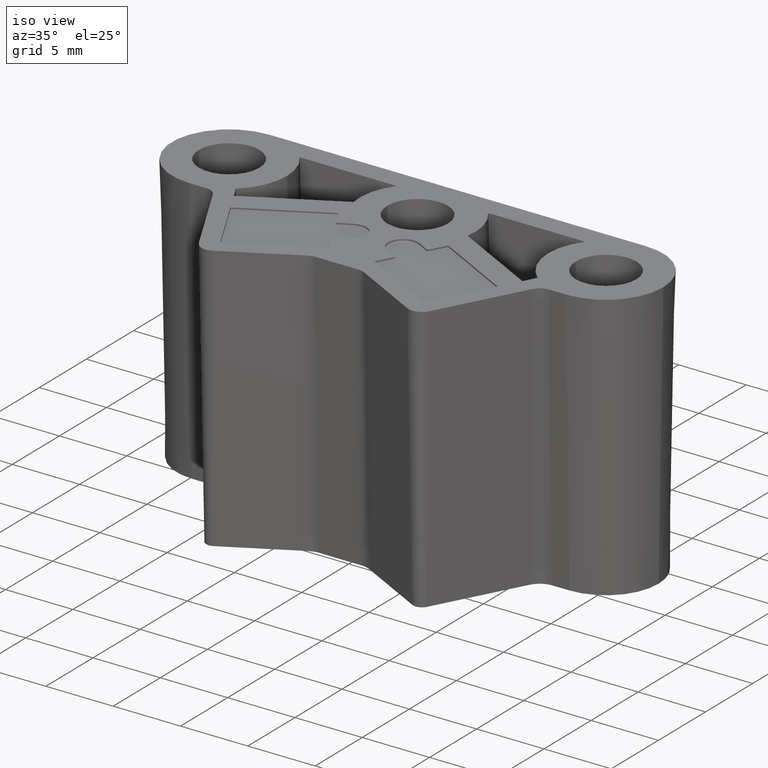
[diagram: clean part render]
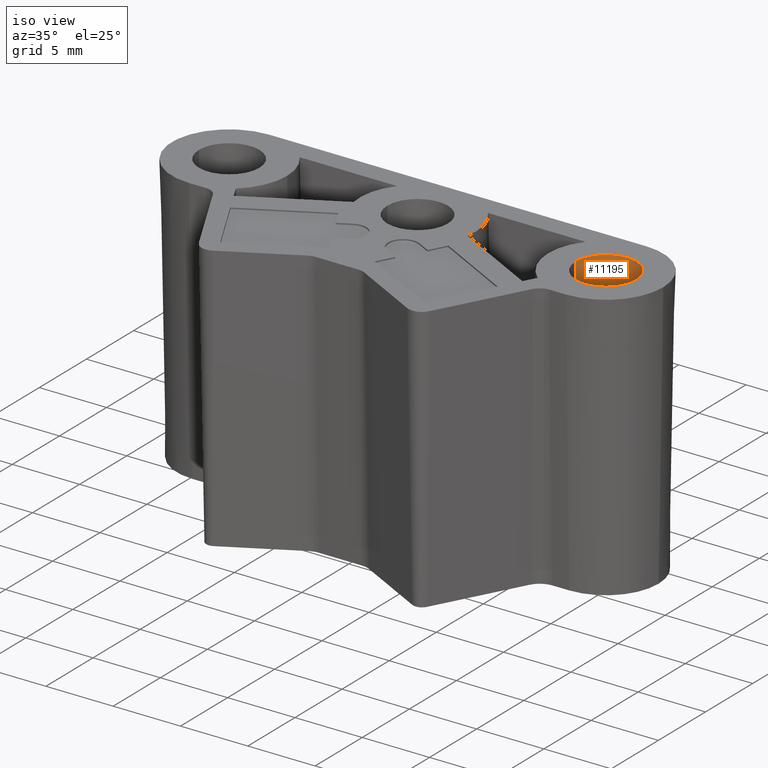
[diagram: same view with one face highlighted and labeled with its STEP entity id]
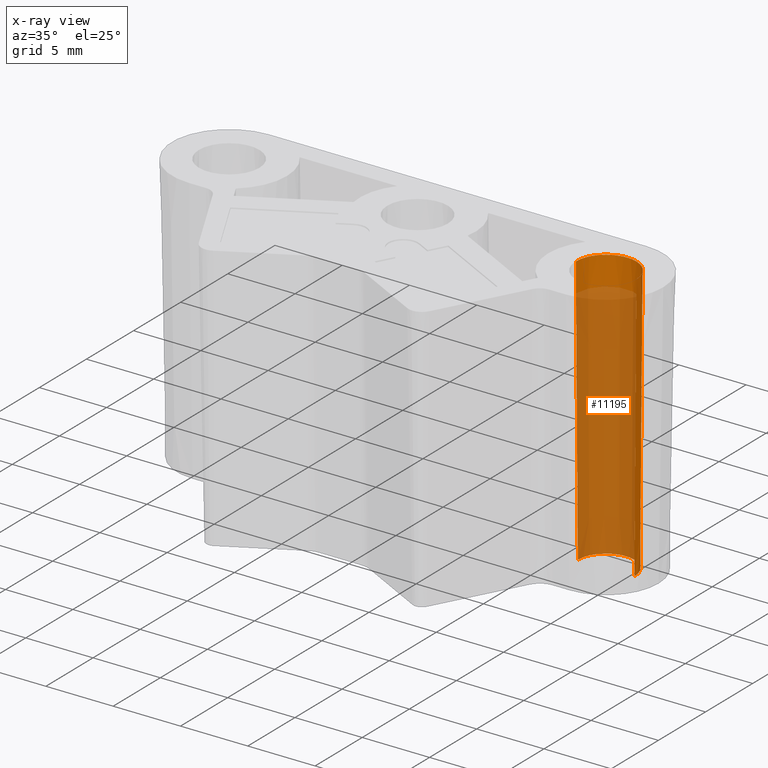
[diagram: x-ray of the same camera — body ghosted, the highlighted face saturated]
A machine part, iso view. The second image highlights one B-rep face of the part: STEP entity #11195.
The next image is the same camera in x-ray: the body ghosted, the highlighted face saturated — about 80% of this face is hidden behind the body in this view.
In plain terms, the highlighted conical surface has half-angle 0.43 deg.
Its self-contained STEP definition (entity closure, byte-faithful):
#1626 = DIRECTION ( 'NONE',  ( 1.000000000000000000, 0.0000000000000000000, 5.916456789157585900E-031 ) ) ;
#1627 = DIRECTION ( 'NONE',  ( 5.916456789157588500E-031, 5.146084811402694200E-031, 1.000000000000000000 ) ) ;
#1628 = CARTESIAN_POINT ( 'NONE',  ( 13.99999999999999800, 32.29999999999999700, 0.0000000000000000000 ) ) ;
#1629 = AXIS2_PLACEMENT_3D ( 'NONE', #1628, #1627, #1626 ) ;
#1630 = CIRCLE ( 'NONE', #1629, 2.100000000000001000 ) ;
#2148 = CIRCLE ( 'NONE', #2211, 2.249996408119448800 ) ;
#2208 = DIRECTION ( 'NONE',  ( 1.000000000000000000, 0.0000000000000000000, 0.0000000000000000000 ) ) ;
#2209 = DIRECTION ( 'NONE',  ( 5.916456789157588500E-031, 5.146084811402694200E-031, 1.000000000000000000 ) ) ;
#2210 = CARTESIAN_POINT ( 'NONE',  ( 13.99999999999999800, 32.29999999999999700, 20.00000000000001800 ) ) ;
#2211 = AXIS2_PLACEMENT_3D ( 'NONE', #2210, #2209, #2208 ) ;
#4363 = DIRECTION ( 'NONE',  ( -0.007499609492522719600, 9.184069435735085200E-019, 0.9999718775332932000 ) ) ;
#4364 = VECTOR ( 'NONE', #4363, 1000.000000000000100 ) ;
#4365 = CARTESIAN_POINT ( 'NONE',  ( 11.89999999999999900, 32.29999999999999700, -1.242455925723093700E-030 ) ) ;
#4366 = LINE ( 'NONE', #4365, #4364 ) ;
#4369 = CARTESIAN_POINT ( 'NONE',  ( 16.24999640811944700, 32.29999999999999700, 20.00000000000001800 ) ) ;
#4370 = CARTESIAN_POINT ( 'NONE',  ( 11.89999999999999900, 32.29999999999999700, 1.242455925723093600E-030 ) ) ;
#4371 = CARTESIAN_POINT ( 'NONE',  ( 16.10000000000000100, 32.29999999999999700, 1.242455925723093600E-030 ) ) ;
#4397 = DIRECTION ( 'NONE',  ( 0.007499609492522719600, 5.144498011504655900E-031, 0.9999718775332932000 ) ) ;
#4398 = VECTOR ( 'NONE', #4397, 1000.000000000000100 ) ;
#4399 = CARTESIAN_POINT ( 'NONE',  ( 16.10000000000000100, 32.29999999999999700, 1.242455925723093600E-030 ) ) ;
#4400 = LINE ( 'NONE', #4399, #4398 ) ;
#4407 = CARTESIAN_POINT ( 'NONE',  ( 11.75000359188055100, 32.29999999999999700, 20.00000000000001800 ) ) ;
#4527 = FACE_OUTER_BOUND ( 'NONE', #11196, .T. ) ;
#4744 = CONICAL_SURFACE ( 'NONE', #4801, 2.100000000000001000, 0.007499679795819651000 ) ;
#4796 = DIRECTION ( 'NONE',  ( 1.000000000000000000, 0.0000000000000000000, 5.916456789157585900E-031 ) ) ;
#4797 = DIRECTION ( 'NONE',  ( 5.916456789157588500E-031, 5.146084811402694200E-031, 1.000000000000000000 ) ) ;
#4798 = CARTESIAN_POINT ( 'NONE',  ( 13.99999999999999800, 32.29999999999999700, 0.0000000000000000000 ) ) ;
#4801 = AXIS2_PLACEMENT_3D ( 'NONE', #4798, #4797, #4796 ) ;
#9953 = VERTEX_POINT ( 'NONE', #4407 ) ;
#9957 = VERTEX_POINT ( 'NONE', #4371 ) ;
#9958 = VERTEX_POINT ( 'NONE', #4370 ) ;
#9959 = VERTEX_POINT ( 'NONE', #4369 ) ;
#9967 = EDGE_CURVE ( 'NONE', #9958, #9953, #4366, .T. ) ;
#9971 = EDGE_CURVE ( 'NONE', #9957, #9959, #4400, .T. ) ;
#11190 = ORIENTED_EDGE ( 'NONE', *, *, #9967, .F. ) ;
#11191 = ORIENTED_EDGE ( 'NONE', *, *, #13246, .F. ) ;
#11195 = ADVANCED_FACE ( 'NONE', ( #4527 ), #4744, .F. ) ;
#11196 = EDGE_LOOP ( 'NONE', ( #11190, #11191, #11203, #11204 ) ) ;
#11203 = ORIENTED_EDGE ( 'NONE', *, *, #9971, .T. ) ;
#11204 = ORIENTED_EDGE ( 'NONE', *, *, #13469, .T. ) ;
#13246 = EDGE_CURVE ( 'NONE', #9957, #9958, #1630, .T. ) ;
#13469 = EDGE_CURVE ( 'NONE', #9959, #9953, #2148, .T. ) ;